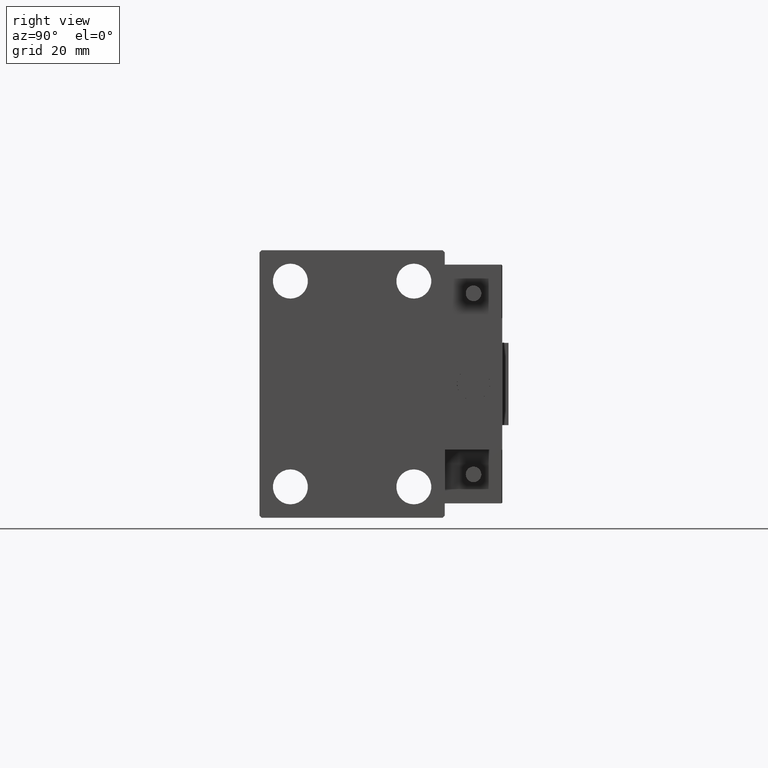
[diagram: clean part render]
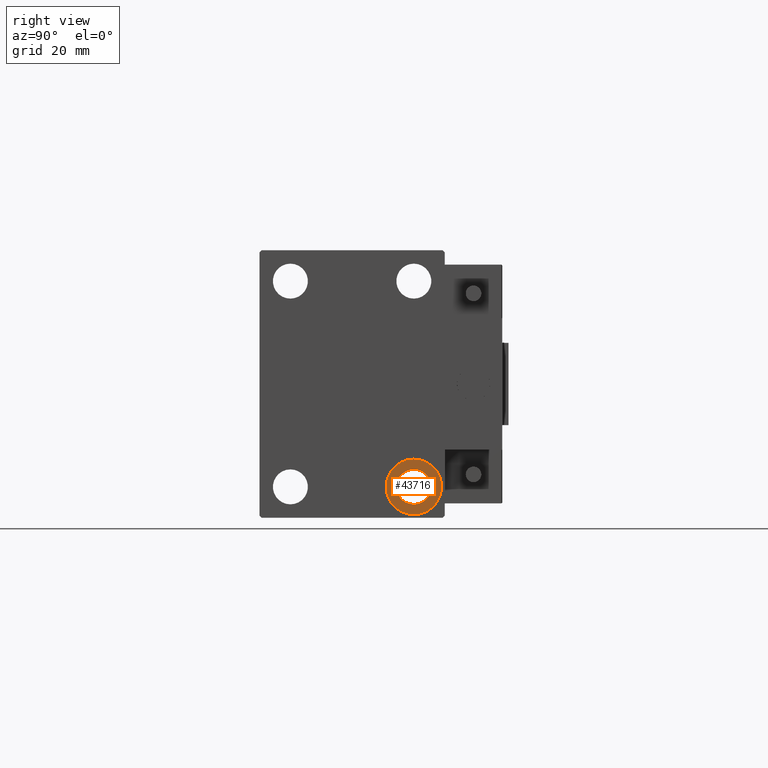
[diagram: same view with one face highlighted and labeled with its STEP entity id]
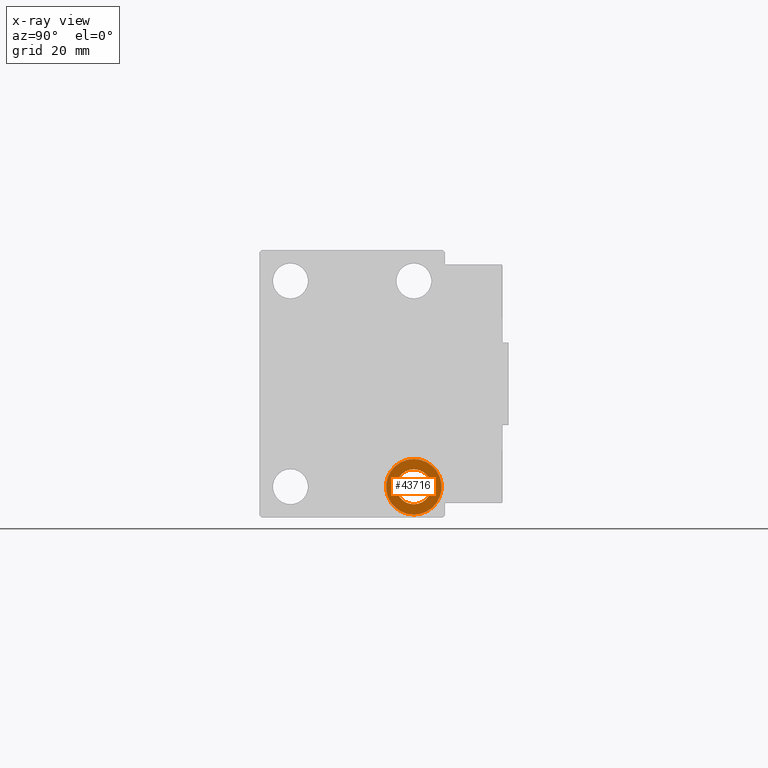
[diagram: x-ray of the same camera — body ghosted, the highlighted face saturated]
A machine part, right view. The second image highlights one B-rep face of the part: STEP entity #43716.
The next image is the same camera in x-ray: the body ghosted, the highlighted face saturated — about 0% of this face is hidden behind the body in this view.
In plain terms, the highlighted planar face has unit normal (1, 0, 0).
Its self-contained STEP definition (entity closure, byte-faithful):
#300 = PLANE ( 'NONE',  #41471 ) ;
#650 = CIRCLE ( 'NONE', #35900, 6.749999999999999112 ) ;
#1507 = DIRECTION ( 'NONE',  ( 0.000000000000000000, 0.000000000000000000, -1.000000000000000000 ) ) ;
#1523 = AXIS2_PLACEMENT_3D ( 'NONE', #9992, #30532, #14105 ) ;
#3676 = ORIENTED_EDGE ( 'NONE', *, *, #40599, .F. ) ;
#4392 = DIRECTION ( 'NONE',  ( 0.000000000000000000, 0.000000000000000000, 1.000000000000000000 ) ) ;
#5382 = CARTESIAN_POINT ( 'NONE',  ( 66.00000000000000000, 14.99999999999999645, -31.75000000000000000 ) ) ;
#5841 = ORIENTED_EDGE ( 'NONE', *, *, #47886, .T. ) ;
#6046 = CARTESIAN_POINT ( 'NONE',  ( 66.00000000000000000, 14.99999999999999645, -29.25000000000000000 ) ) ;
#7591 = DIRECTION ( 'NONE',  ( 0.000000000000000000, 0.000000000000000000, 1.000000000000000000 ) ) ;
#7771 = AXIS2_PLACEMENT_3D ( 'NONE', #30718, #38925, #8111 ) ;
#7945 = VERTEX_POINT ( 'NONE', #6046 ) ;
#8111 = DIRECTION ( 'NONE',  ( 0.000000000000000000, 0.000000000000000000, 1.000000000000000000 ) ) ;
#9992 = CARTESIAN_POINT ( 'NONE',  ( 66.00000000000000000, 14.99999999999999645, -25.00000000000000000 ) ) ;
#11712 = CARTESIAN_POINT ( 'NONE',  ( 66.00000000000000000, 14.99999999999999645, -25.00000000000000000 ) ) ;
#14105 = DIRECTION ( 'NONE',  ( 0.000000000000000000, 0.000000000000000000, -1.000000000000000000 ) ) ;
#14531 = EDGE_LOOP ( 'NONE', ( #39342, #5841 ) ) ;
#14663 = FACE_BOUND ( 'NONE', #14531, .T. ) ;
#22363 = FACE_OUTER_BOUND ( 'NONE', #44088, .T. ) ;
#22867 = DIRECTION ( 'NONE',  ( 1.000000000000000000, 0.000000000000000000, -0.000000000000000000 ) ) ;
#23530 = CARTESIAN_POINT ( 'NONE',  ( 66.00000000000000000, 14.99999999999999645, -20.75000000000000355 ) ) ;
#24096 = AXIS2_PLACEMENT_3D ( 'NONE', #44629, #33063, #1507 ) ;
#27144 = CARTESIAN_POINT ( 'NONE',  ( 66.00000000000000000, 14.99999999999999645, -18.25000000000000355 ) ) ;
#30532 = DIRECTION ( 'NONE',  ( -1.000000000000000000, -0.000000000000000000, -0.000000000000000000 ) ) ;
#30718 = CARTESIAN_POINT ( 'NONE',  ( 66.00000000000000000, 14.99999999999999645, -25.00000000000000000 ) ) ;
#31728 = DIRECTION ( 'NONE',  ( -1.000000000000000000, -0.000000000000000000, -0.000000000000000000 ) ) ;
#31814 = VERTEX_POINT ( 'NONE', #5382 ) ;
#32658 = CIRCLE ( 'NONE', #1523, 4.249999999999996447 ) ;
#33063 = DIRECTION ( 'NONE',  ( -1.000000000000000000, -0.000000000000000000, -0.000000000000000000 ) ) ;
#33100 = CIRCLE ( 'NONE', #24096, 4.249999999999996447 ) ;
#33945 = VERTEX_POINT ( 'NONE', #23530 ) ;
#35317 = ORIENTED_EDGE ( 'NONE', *, *, #46244, .F. ) ;
#35900 = AXIS2_PLACEMENT_3D ( 'NONE', #11712, #31728, #7591 ) ;
#35989 = VERTEX_POINT ( 'NONE', #27144 ) ;
#38014 = EDGE_CURVE ( 'NONE', #33945, #7945, #33100, .T. ) ;
#38925 = DIRECTION ( 'NONE',  ( -1.000000000000000000, -0.000000000000000000, -0.000000000000000000 ) ) ;
#39342 = ORIENTED_EDGE ( 'NONE', *, *, #38014, .T. ) ;
#40565 = CIRCLE ( 'NONE', #7771, 6.749999999999999112 ) ;
#40599 = EDGE_CURVE ( 'NONE', #35989, #31814, #40565, .T. ) ;
#41471 = AXIS2_PLACEMENT_3D ( 'NONE', #42626, #22867, #4392 ) ;
#42626 = CARTESIAN_POINT ( 'NONE',  ( 66.00000000000000000, 14.99999999999999645, -25.00000000000000000 ) ) ;
#43716 = ADVANCED_FACE ( 'NONE', ( #22363, #14663 ), #300, .T. ) ;
#44088 = EDGE_LOOP ( 'NONE', ( #35317, #3676 ) ) ;
#44629 = CARTESIAN_POINT ( 'NONE',  ( 66.00000000000000000, 14.99999999999999645, -25.00000000000000000 ) ) ;
#46244 = EDGE_CURVE ( 'NONE', #31814, #35989, #650, .T. ) ;
#47886 = EDGE_CURVE ( 'NONE', #7945, #33945, #32658, .T. ) ;